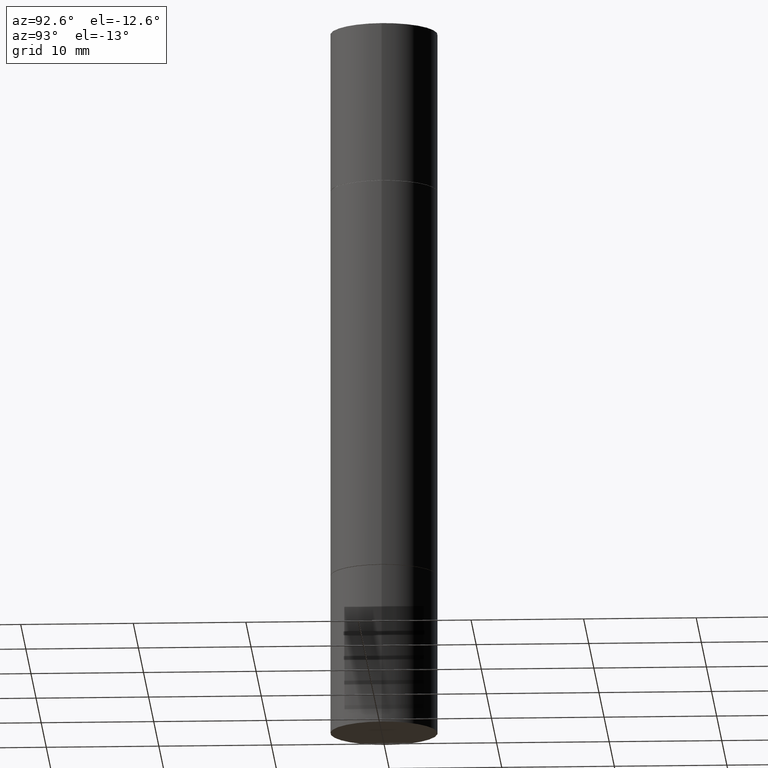
[diagram: clean part render]
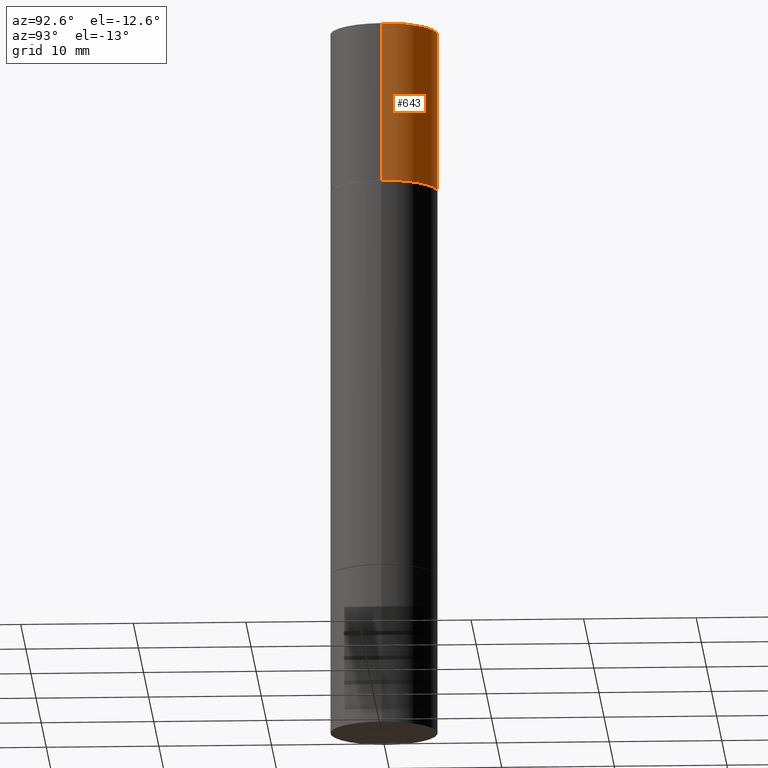
[diagram: same view with one face highlighted and labeled with its STEP entity id]
A machine part, auxiliary view. The second image highlights one B-rep face of the part: STEP entity #643.
In plain terms, the highlighted cylindrical surface (partial cylindrical patch) has radius 4.7625 mm, axis along (-0, -0, -1).
Its self-contained STEP definition (entity closure, byte-faithful):
#5 = CARTESIAN_POINT ( 'NONE',  ( 4.739318546386794397E-29, -1.961243070406324635E-15, -0.5619999999999996110 ) ) ;
#40 = VERTEX_POINT ( 'NONE', #139 ) ;
#84 = CARTESIAN_POINT ( 'NONE',  ( -0.1875000000000000278, 3.066025098218802702E-16, 5.463695987328561936E-16 ) ) ;
#91 = VERTEX_POINT ( 'NONE', #204 ) ;
#99 = VERTEX_POINT ( 'NONE', #243 ) ;
#134 = DIRECTION ( 'NONE',  ( 1.000000000000000000, -6.982962677686266711E-15, 0.000000000000000000 ) ) ;
#139 = CARTESIAN_POINT ( 'NONE',  ( 0.1875000000000000278, -1.307544161180414563E-15, 5.463695987328526437E-16 ) ) ;
#167 = DIRECTION ( 'NONE',  ( -2.445468806185136877E-29, -3.492890411551753071E-15, -1.000000000000000000 ) ) ;
#171 = AXIS2_PLACEMENT_3D ( 'NONE', #5, #358, #415 ) ;
#188 = AXIS2_PLACEMENT_3D ( 'NONE', #545, #224, #660 ) ;
#204 = CARTESIAN_POINT ( 'NONE',  ( -0.1875000000000000278, 3.066025098218802702E-16, -0.5619999999999996110 ) ) ;
#211 = VECTOR ( 'NONE', #167, 39.37007874015748143 ) ;
#224 = DIRECTION ( 'NONE',  ( 2.445468806185136597E-29, 3.492890411551752677E-15, 1.000000000000000000 ) ) ;
#227 = ORIENTED_EDGE ( 'NONE', *, *, #510, .T. ) ;
#232 = FACE_OUTER_BOUND ( 'NONE', #514, .T. ) ;
#233 = CIRCLE ( 'NONE', #171, 0.1875000000000000278 ) ;
#243 = CARTESIAN_POINT ( 'NONE',  ( 0.1875000000000000278, -3.270548572472500038E-15, -0.5619999999999996110 ) ) ;
#256 = LINE ( 'NONE', #587, #599 ) ;
#272 = LINE ( 'NONE', #455, #211 ) ;
#311 = DIRECTION ( 'NONE',  ( -2.445468806185136877E-29, -3.492890411551753071E-15, -1.000000000000000000 ) ) ;
#345 = EDGE_CURVE ( 'NONE', #601, #91, #256, .T. ) ;
#358 = DIRECTION ( 'NONE',  ( 2.445468806185136597E-29, 3.492890411551752677E-15, 1.000000000000000000 ) ) ;
#390 = AXIS2_PLACEMENT_3D ( 'NONE', #443, #662, #134 ) ;
#409 = EDGE_CURVE ( 'NONE', #40, #601, #511, .T. ) ;
#415 = DIRECTION ( 'NONE',  ( 1.000000000000000000, -6.982962677686266711E-15, 0.000000000000000000 ) ) ;
#430 = ORIENTED_EDGE ( 'NONE', *, *, #345, .F. ) ;
#443 = CARTESIAN_POINT ( 'NONE',  ( 0.000000000000000000, -8.730464687993621641E-15, -2.499999999999999556 ) ) ;
#455 = CARTESIAN_POINT ( 'NONE',  ( 0.1875000000000000278, -1.003977019005979665E-14, -2.499999999999999556 ) ) ;
#510 = EDGE_CURVE ( 'NONE', #99, #91, #233, .T. ) ;
#511 = CIRCLE ( 'NONE', #188, 0.1875000000000000278 ) ;
#514 = EDGE_LOOP ( 'NONE', ( #430, #568, #567, #227 ) ) ;
#545 = CARTESIAN_POINT ( 'NONE',  ( 6.113672015462842613E-29, 1.761340885760521790E-18, 5.463695987328526437E-16 ) ) ;
#567 = ORIENTED_EDGE ( 'NONE', *, *, #611, .T. ) ;
#568 = ORIENTED_EDGE ( 'NONE', *, *, #409, .F. ) ;
#587 = CARTESIAN_POINT ( 'NONE',  ( -0.1875000000000000278, -7.444121313411457895E-15, -2.499999999999999556 ) ) ;
#599 = VECTOR ( 'NONE', #311, 39.37007874015748143 ) ;
#601 = VERTEX_POINT ( 'NONE', #84 ) ;
#604 = CYLINDRICAL_SURFACE ( 'NONE', #390, 0.1875000000000000278 ) ;
#611 = EDGE_CURVE ( 'NONE', #40, #99, #272, .T. ) ;
#643 = ADVANCED_FACE ( 'NONE', ( #232 ), #604, .T. ) ;
#660 = DIRECTION ( 'NONE',  ( 1.000000000000000000, -6.982962677686265922E-15, 0.000000000000000000 ) ) ;
#662 = DIRECTION ( 'NONE',  ( -2.445468806185136597E-29, -3.492890411551752677E-15, -1.000000000000000000 ) ) ;